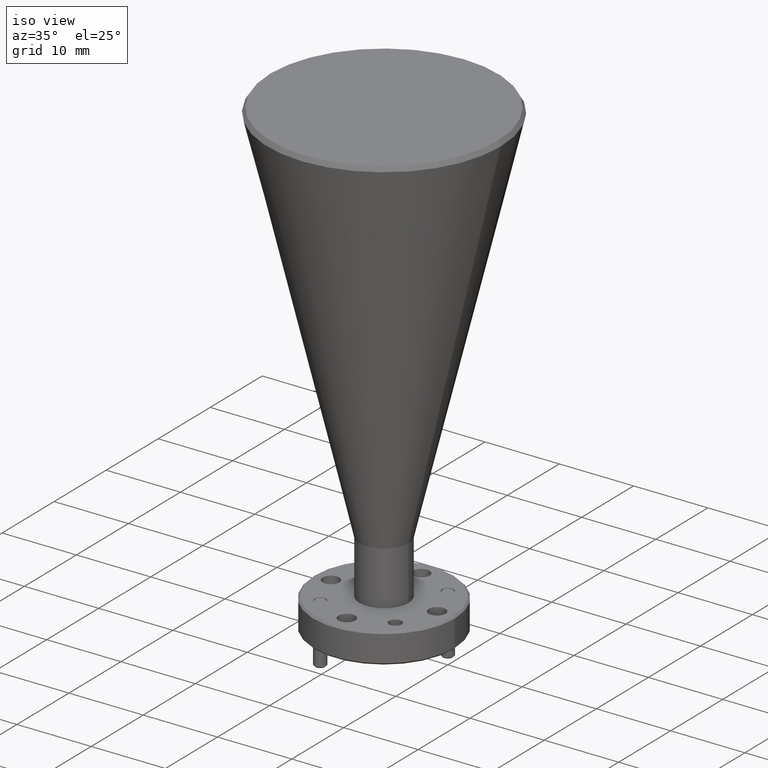
[diagram: clean part render]
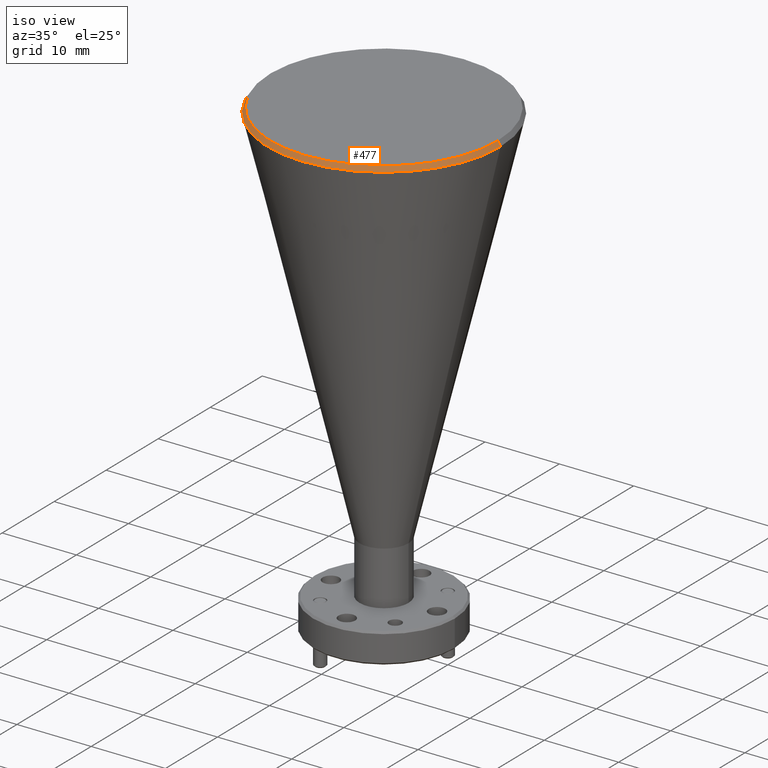
[diagram: same view with one face highlighted and labeled with its STEP entity id]
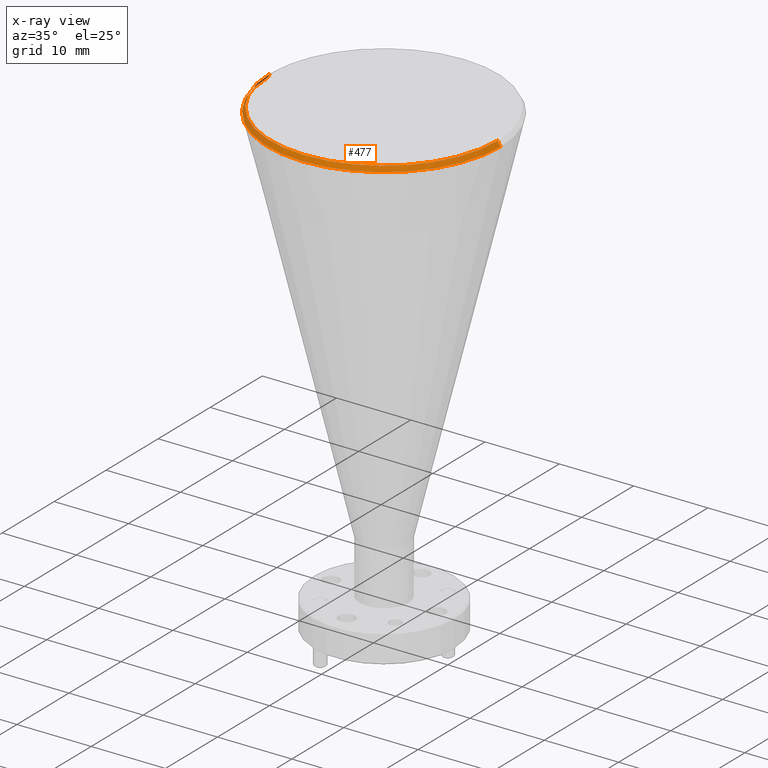
[diagram: x-ray of the same camera — body ghosted, the highlighted face saturated]
A machine part, iso view. The second image highlights one B-rep face of the part: STEP entity #477.
The next image is the same camera in x-ray: the body ghosted, the highlighted face saturated — about 0% of this face is hidden behind the body in this view.
In plain terms, the highlighted conical surface has half-angle 31.5 deg.
Its self-contained STEP definition (entity closure, byte-faithful):
#16 = LINE ( 'NONE', #1269, #1499 ) ;
#153 = EDGE_CURVE ( 'NONE', #296, #1120, #16, .T. ) ;
#217 = CONICAL_SURFACE ( 'NONE', #563, 0.6024720511839321002, 0.5497787143782199015 ) ;
#255 = CARTESIAN_POINT ( 'NONE',  ( -0.1915898273757628278, 0.9719871311564923788, 2.738488428938869124 ) ) ;
#296 = VERTEX_POINT ( 'NONE', #1830 ) ;
#319 = AXIS2_PLACEMENT_3D ( 'NONE', #575, #1823, #1811 ) ;
#477 = ADVANCED_FACE ( 'NONE', ( #1220 ), #217, .T. ) ;
#563 = AXIS2_PLACEMENT_3D ( 'NONE', #255, #815, #867 ) ;
#575 = CARTESIAN_POINT ( 'NONE',  ( -0.1915898273757628278, 0.9719871311564923788, 2.714179180928925739 ) ) ;
#587 = CIRCLE ( 'NONE', #319, 0.6173687775235147113 ) ;
#626 = VECTOR ( 'NONE', #1113, 39.37007874015748854 ) ;
#685 = VERTEX_POINT ( 'NONE', #1218 ) ;
#694 = AXIS2_PLACEMENT_3D ( 'NONE', #1337, #1509, #782 ) ;
#782 = DIRECTION ( 'NONE',  ( -1.000000000000000000, 0.000000000000000000, 0.000000000000000000 ) ) ;
#815 = DIRECTION ( 'NONE',  ( 0.000000000000000000, 0.000000000000000000, -1.000000000000000000 ) ) ;
#867 = DIRECTION ( 'NONE',  ( -1.000000000000000000, 0.000000000000000000, 0.000000000000000000 ) ) ;
#973 = CARTESIAN_POINT ( 'NONE',  ( -0.8089586048992774003, 0.9719871311564923788, 2.714179180928925739 ) ) ;
#1103 = DIRECTION ( 'NONE',  ( -0.5224985647159540170, 0.000000000000000000, -0.8526401643540889586 ) ) ;
#1113 = DIRECTION ( 'NONE',  ( 0.5224985647159540170, 6.398761948384793010E-17, -0.8526401643540889586 ) ) ;
#1120 = VERTEX_POINT ( 'NONE', #973 ) ;
#1187 = ORIENTED_EDGE ( 'NONE', *, *, #1517, .F. ) ;
#1218 = CARTESIAN_POINT ( 'NONE',  ( 0.4108822238081692446, 0.9719871311564924898, 2.738488428938869124 ) ) ;
#1220 = FACE_OUTER_BOUND ( 'NONE', #1341, .T. ) ;
#1269 = CARTESIAN_POINT ( 'NONE',  ( -0.7940618785596949003, 0.9719871311564923788, 2.738488428938869124 ) ) ;
#1337 = CARTESIAN_POINT ( 'NONE',  ( -0.1915898273757628278, 0.9719871311564923788, 2.738488428938869124 ) ) ;
#1341 = EDGE_LOOP ( 'NONE', ( #1796, #1456, #1875, #1187 ) ) ;
#1376 = EDGE_CURVE ( 'NONE', #685, #2034, #1790, .T. ) ;
#1456 = ORIENTED_EDGE ( 'NONE', *, *, #2108, .F. ) ;
#1499 = VECTOR ( 'NONE', #1103, 39.37007874015748854 ) ;
#1509 = DIRECTION ( 'NONE',  ( -0.000000000000000000, -0.000000000000000000, 1.000000000000000000 ) ) ;
#1517 = EDGE_CURVE ( 'NONE', #2034, #1120, #587, .T. ) ;
#1665 = CIRCLE ( 'NONE', #694, 0.6024720511839321002 ) ;
#1790 = LINE ( 'NONE', #2174, #626 ) ;
#1796 = ORIENTED_EDGE ( 'NONE', *, *, #1376, .F. ) ;
#1811 = DIRECTION ( 'NONE',  ( -1.000000000000000000, 0.000000000000000000, 0.000000000000000000 ) ) ;
#1823 = DIRECTION ( 'NONE',  ( 0.000000000000000000, 0.000000000000000000, -1.000000000000000000 ) ) ;
#1830 = CARTESIAN_POINT ( 'NONE',  ( -0.7940618785596949003, 0.9719871311564923788, 2.738488428938869124 ) ) ;
#1875 = ORIENTED_EDGE ( 'NONE', *, *, #153, .T. ) ;
#2014 = CARTESIAN_POINT ( 'NONE',  ( 0.4257789501477517446, 0.9719871311564923788, 2.714179180928925739 ) ) ;
#2034 = VERTEX_POINT ( 'NONE', #2014 ) ;
#2108 = EDGE_CURVE ( 'NONE', #296, #685, #1665, .T. ) ;
#2174 = CARTESIAN_POINT ( 'NONE',  ( 0.4108822238081692446, 0.9719871311564924898, 2.738488428938869124 ) ) ;